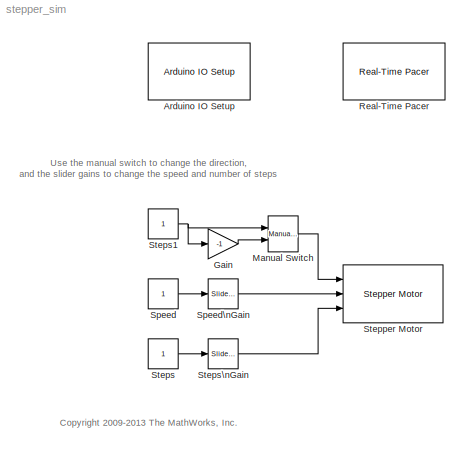
MODEL stepper_sim
KIND model
BLOCK [Reference] Arduino IO Setup  REF=arduino_io_lib/Arduino IO Setup
  Ports = []
  Priority = 3
  SourceBlock = arduino_io_lib/Arduino IO Setup
  SourceType = Arduino IO Setup
  arduinoVar = Temporary arduino variable: Arduino1
  comPort = COM9
BLOCK [Gain] Gain
  Gain = -1
  OutDataTypeMode = Inherit via internal rule
  OutDataTypeStr = Inherit: Inherit via internal rule
  ParamDataTypeStr = Inherit: Inherit via internal rule
  ParameterDataTypeMode = Inherit via internal rule
  SaturateOnIntegerOverflow = off
BLOCK [Reference] Manual Switch  REF=simulink/Signal\nRouting/Manual Switch
  FunctionWithSeparateData = off
  Ports = [2, 1]
  RTWMemSecDataConstants = Inherit from model
  RTWMemSecDataInternal = Inherit from model
  RTWMemSecDataParameters = Inherit from model
  RTWMemSecFuncExecute = Inherit from model
  RTWMemSecFuncInitTerm = Inherit from model
  ShowPortLabels = FromPortIcon
  SourceBlock = simulink/Signal\nRouting/Manual Switch
  SourceType = Manual Switch
  SystemSampleTime = -1
  action = 0
  sw = 0
  varsize = off
BLOCK [Reference] Real-Time Pacer  REF=arduino_io_lib/Real-Time Pacer
  Ports = []
  SourceBlock = arduino_io_lib/Real-Time Pacer
  SourceType = RealTime_Pacer
  simTimePerRealTime = 1
BLOCK [Constant] Speed
BLOCK [Reference] Speed\nGain  REF=simulink/Math\nOperations/Slider\nGain
  FunctionWithSeparateData = off
  Ports = [1, 1]
  RTWMemSecDataConstants = Inherit from model
  RTWMemSecDataInternal = Inherit from model
  RTWMemSecDataParameters = Inherit from model
  RTWMemSecFuncExecute = Inherit from model
  RTWMemSecFuncInitTerm = Inherit from model
  ShowPortLabels = FromPortIcon
  SourceBlock = simulink/Math\nOperations/Slider\nGain
  SourceType = Slider Gain
  SystemSampleTime = -1
  gain = 10
  high = 60
  low = 0
BLOCK [Reference] Stepper Motor  REF=arduino_io_lib/Stepper Motor
  Ports = [3]
  SourceBlock = arduino_io_lib/Stepper Motor
  SourceType = Arduino IO Stepper Motor
  T = 0.1
  arduinoVar = Temporary arduino variable: Arduino1
  motionStyle = single
  motorNum = 1
  sendOnChange = on
BLOCK [Constant] Steps
BLOCK [Constant] Steps1
BLOCK [Reference] Steps\nGain  REF=simulink/Math\nOperations/Slider\nGain
  FunctionWithSeparateData = off
  Ports = [1, 1]
  RTWMemSecDataConstants = Inherit from model
  RTWMemSecDataInternal = Inherit from model
  RTWMemSecDataParameters = Inherit from model
  RTWMemSecFuncExecute = Inherit from model
  RTWMemSecFuncInitTerm = Inherit from model
  ShowPortLabels = FromPortIcon
  SourceBlock = simulink/Math\nOperations/Slider\nGain
  SourceType = Slider Gain
  SystemSampleTime = -1
  gain = 2
  high = 10
  low = 0
ANNOTATION (root): <copyright redacted>
ANNOTATION (root): Use the manual switch to change the direction, \nand the slider gains to change the speed and number of steps
LINE Gain:1 -> Manual Switch:2
LINE Manual Switch:1 -> Stepper Motor:1
LINE Speed:1 -> Speed\nGain:1
LINE Speed\nGain:1 -> Stepper Motor:2
NET Steps1:1 -> Gain:1, Manual Switch:1
LINE Steps:1 -> Steps\nGain:1
LINE Steps\nGain:1 -> Stepper Motor:3
note: NET lines group one-source signal fan-out (src -> all destinations, sorted); 1:1 wires keep LINE
